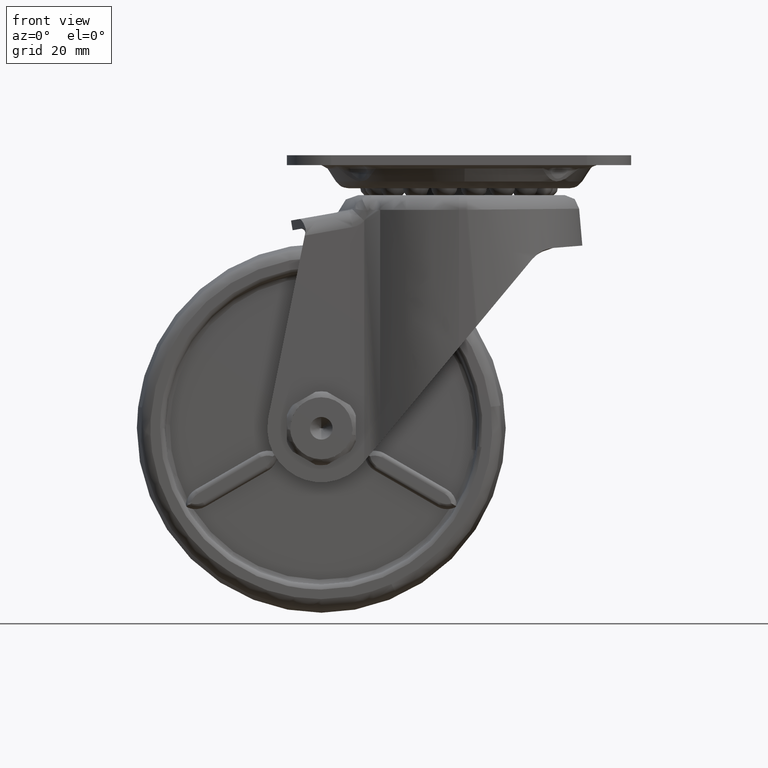
[diagram: clean part render]
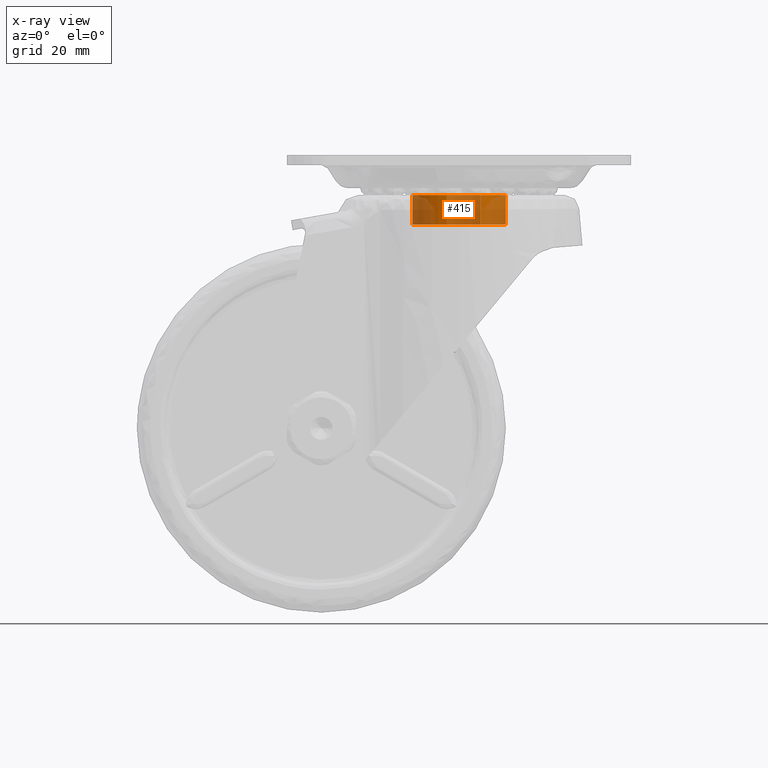
[diagram: x-ray — body ghosted, one internal face saturated and labeled with its STEP entity id]
A machine part, front view, then the same camera in x-ray: the body is ghosted and one INTERNAL B-rep face — a face not visible from any outside direction — is saturated and labeled: STEP entity #415.
In plain terms, the highlighted face is a freeform B-spline surface patch.
Its self-contained STEP definition (entity closure, byte-faithful):
#249=CARTESIAN_POINT('',(4.401541348275800,-8.418814272771337,-14.255999462602938));
#250=CARTESIAN_POINT('',(8.053277435599968,-6.509606294002475,-14.255999462602933));
#251=CARTESIAN_POINT('',(9.154489305481915,-2.538764572743439,-14.255999462602940));
#252=CARTESIAN_POINT('',(11.693253878225356,6.615724732738475,-14.255999462602929));
#253=CARTESIAN_POINT('',(2.538764572743439,9.154489305481915,-14.255999462602940));
#254=CARTESIAN_POINT('',(-6.615724732738475,11.693253878225356,-14.255999462602929));
#255=CARTESIAN_POINT('',(-9.154489305481915,2.538764572743439,-14.255999462602940));
#256=CARTESIAN_POINT('',(-11.693253878225356,-6.615724732738475,-14.255999462602929));
#257=CARTESIAN_POINT('',(-2.538764572743439,-9.154489305481915,-14.255999462602940));
#258=CARTESIAN_POINT('',(4.401541348275800,-8.418814272771337,-7.952251038434922));
#259=CARTESIAN_POINT('',(8.053277435599968,-6.509606294002475,-7.952251038434922));
#260=CARTESIAN_POINT('',(9.154489305481915,-2.538764572743439,-7.952251038434923));
#261=CARTESIAN_POINT('',(11.693253878225356,6.615724732738475,-7.952251038434923));
#262=CARTESIAN_POINT('',(2.538764572743439,9.154489305481915,-7.952251038434923));
#263=CARTESIAN_POINT('',(-6.615724732738475,11.693253878225356,-7.952251038434923));
#264=CARTESIAN_POINT('',(-9.154489305481915,2.538764572743439,-7.952251038434923));
#265=CARTESIAN_POINT('',(-11.693253878225356,-6.615724732738475,-7.952251038434923));
#266=CARTESIAN_POINT('',(-2.538764572743439,-9.154489305481915,-7.952251038434923));
#274=(BOUNDED_SURFACE()B_SPLINE_SURFACE(2,1,((#249,#258),(#250,#259),(#251,#260),(#252,#261),(#253,#262),(#254,#263),(#255,#264),(#256,#265),(#257,#266)),.UNSPECIFIED.,.F.,.F.,.U.)B_SPLINE_SURFACE_WITH_KNOTS((3,2,2,2,3),(2,2),(0.0,8.184859992492354,23.924975362669961,39.665090732847560,55.405206103025172),(0.0,6.303748424168013),.UNSPECIFIED.)GEOMETRIC_REPRESENTATION_ITEM()RATIONAL_B_SPLINE_SURFACE(((0.853787705168325,0.853787705168325),(0.847695526217005,0.847695526217005),(1.0,1.0),(0.707106781186548,0.707106781186548),(1.0,1.0),(0.707106781186548,0.707106781186548),(1.0,1.0),(0.707106781186548,0.707106781186548),(1.0,1.0)))REPRESENTATION_ITEM('')SURFACE());
#275=CARTESIAN_POINT('',(7.227042919140166,-6.166023892664216,-14.105999500096450));
#276=VERTEX_POINT('',#275);
#277=CARTESIAN_POINT('',(4.401541348279605,-8.418814272769328,-14.105999500031210));
#278=VERTEX_POINT('',#277);
#279=CARTESIAN_POINT('',(7.227042919140166,-6.166023892664216,-14.105999500096454));
#280=CARTESIAN_POINT('',(6.032507196696787,-7.566109439659019,-14.105999500055912));
#281=CARTESIAN_POINT('',(4.401541348279605,-8.418814272769327,-14.105999500031215));
#289=(BOUNDED_CURVE()B_SPLINE_CURVE(2,(#279,#280,#281),.UNSPECIFIED.,.F.,.U.)B_SPLINE_CURVE_WITH_KNOTS((3,3),(0.613065093416173,0.671174122833219),.UNSPECIFIED.)CURVE()GEOMETRIC_REPRESENTATION_ITEM()RATIONAL_B_SPLINE_CURVE((0.854888440015930,0.848388311537384,0.873536202615709))REPRESENTATION_ITEM(''));
#290=EDGE_CURVE('',#276,#278,#289,.T.);
#291=ORIENTED_EDGE('',*,*,#290,.T.);
#292=CARTESIAN_POINT('',(4.401532735066946,-8.418818775935232,-8.106000999999999));
#293=VERTEX_POINT('',#292);
#294=CARTESIAN_POINT('',(4.401541348279605,-8.418814272769328,-14.105999500031210));
#295=CARTESIAN_POINT('',(4.401532735066946,-8.418818775935232,-8.106000999999999));
#296=QUASI_UNIFORM_CURVE('',1,(#294,#295),.UNSPECIFIED.,.F.,.U.);
#297=EDGE_CURVE('',#278,#293,#296,.T.);
#298=ORIENTED_EDGE('',*,*,#297,.T.);
#299=CARTESIAN_POINT('',(9.500000000000000,0.0,-8.106000999999999));
#300=VERTEX_POINT('',#299);
#301=CARTESIAN_POINT('',(9.500000000000000,0.0,-8.106000999999999));
#302=CARTESIAN_POINT('',(9.499999999999998,-5.753234545832846,-8.106000999999999));
#303=CARTESIAN_POINT('',(4.401532735066946,-8.418818775935232,-8.106000999999999));
#311=(BOUNDED_CURVE()B_SPLINE_CURVE(2,(#301,#302,#303),.UNSPECIFIED.,.F.,.U.)B_SPLINE_CURVE_WITH_KNOTS((3,3),(0.0,0.171174280819783),.UNSPECIFIED.)CURVE()GEOMETRIC_REPRESENTATION_ITEM()RATIONAL_B_SPLINE_CURVE((1.0,0.799456855650464,0.873536339359886))REPRESENTATION_ITEM(''));
#312=EDGE_CURVE('',#300,#293,#311,.T.);
#313=ORIENTED_EDGE('',*,*,#312,.F.);
#314=CARTESIAN_POINT('',(-9.500000000000000,0.0,-8.106000999999999));
#315=VERTEX_POINT('',#314);
#316=CARTESIAN_POINT('',(-9.500000000000000,0.0,-8.106000999999999));
#317=CARTESIAN_POINT('',(-9.500000000000000,9.500000000000000,-8.106000999999999));
#318=CARTESIAN_POINT('',(0.0,9.500000000000000,-8.106000999999999));
#319=CARTESIAN_POINT('',(9.500000000000000,9.500000000000000,-8.106000999999999));
#320=CARTESIAN_POINT('',(9.500000000000000,0.0,-8.106000999999999));
#328=(BOUNDED_CURVE()B_SPLINE_CURVE(2,(#316,#317,#318,#319,#320),.UNSPECIFIED.,.F.,.U.)B_SPLINE_CURVE_WITH_KNOTS((3,2,3),(0.500000000000000,0.750000000000000,1.0),.UNSPECIFIED.)CURVE()GEOMETRIC_REPRESENTATION_ITEM()RATIONAL_B_SPLINE_CURVE((1.0,0.707106781186548,1.0,0.707106781186548,1.0))REPRESENTATION_ITEM(''));
#329=EDGE_CURVE('',#315,#300,#328,.T.);
#330=ORIENTED_EDGE('',*,*,#329,.F.);
#331=CARTESIAN_POINT('',(-2.538759619908632,-9.154490679021684,-8.106000999999999));
#332=VERTEX_POINT('',#331);
#333=CARTESIAN_POINT('',(-2.538759619908632,-9.154490679021684,-8.106000999999999));
#334=CARTESIAN_POINT('',(-9.500000000000000,-7.223971920404214,-8.106000999999999));
#335=CARTESIAN_POINT('',(-9.500000000000000,0.0,-8.106000999999999));
#343=(BOUNDED_CURVE()B_SPLINE_CURVE(2,(#333,#334,#335),.UNSPECIFIED.,.F.,.U.)B_SPLINE_CURVE_WITH_KNOTS((3,3),(0.295548739340634,0.500000000000000),.UNSPECIFIED.)CURVE()GEOMETRIC_REPRESENTATION_ITEM()RATIONAL_B_SPLINE_CURVE((0.912717847227673,0.760470448700041,1.0))REPRESENTATION_ITEM(''));
#344=EDGE_CURVE('',#332,#315,#343,.T.);
#345=ORIENTED_EDGE('',*,*,#344,.F.);
#346=CARTESIAN_POINT('',(-2.538764572816133,-9.154489305461757,-14.105999499999900));
#347=VERTEX_POINT('',#346);
#348=CARTESIAN_POINT('',(-2.538764572816133,-9.154489305461757,-14.105999499999900));
#349=CARTESIAN_POINT('',(-2.538759619908632,-9.154490679021684,-8.106000999999999));
#350=QUASI_UNIFORM_CURVE('',1,(#348,#349),.UNSPECIFIED.,.F.,.U.);
#351=EDGE_CURVE('',#347,#332,#350,.T.);
#352=ORIENTED_EDGE('',*,*,#351,.F.);
#353=CARTESIAN_POINT('',(-9.500000000000000,0.0,-14.105999499999900));
#354=VERTEX_POINT('',#353);
#355=CARTESIAN_POINT('',(-2.538764572816133,-9.154489305461757,-14.105999499999895));
#356=CARTESIAN_POINT('',(-9.499999999999998,-7.223967864405740,-14.105999499999896));
#357=CARTESIAN_POINT('',(-9.500000000000000,0.0,-14.105999499999900));
#365=(BOUNDED_CURVE()B_SPLINE_CURVE(2,(#355,#356,#357),.UNSPECIFIED.,.F.,.U.)B_SPLINE_CURVE_WITH_KNOTS((3,3),(0.795548826636550,1.0),.UNSPECIFIED.)CURVE()GEOMETRIC_REPRESENTATION_ITEM()RATIONAL_B_SPLINE_CURVE((0.912717717215573,0.760470550973568,1.0))REPRESENTATION_ITEM(''));
#366=EDGE_CURVE('',#347,#354,#365,.T.);
#367=ORIENTED_EDGE('',*,*,#366,.T.);
#368=CARTESIAN_POINT('',(5.290318356638272,7.890661042359891,-14.105999500100420));
#369=VERTEX_POINT('',#368);
#370=CARTESIAN_POINT('',(-9.500000000000000,0.0,-14.105999499999900));
#371=CARTESIAN_POINT('',(-9.500000000000000,9.500000000000000,-14.105999499999900));
#372=CARTESIAN_POINT('',(0.0,9.500000000000000,-14.105999499999900));
#373=CARTESIAN_POINT('',(2.889943301502541,9.500000000000000,-14.105999499999900));
#374=CARTESIAN_POINT('',(5.290318356638272,7.890661042359892,-14.105999500100422));
#382=(BOUNDED_CURVE()B_SPLINE_CURVE(2,(#370,#371,#372,#373,#374),.UNSPECIFIED.,.F.,.U.)B_SPLINE_CURVE_WITH_KNOTS((3,2,3),(0.0,0.250000000000000,0.345516885356580),.UNSPECIFIED.)CURVE()GEOMETRIC_REPRESENTATION_ITEM()RATIONAL_B_SPLINE_CURVE((1.0,0.707106781186548,1.0,0.888095007987503,0.861700546318099))REPRESENTATION_ITEM(''));
#383=EDGE_CURVE('',#354,#369,#382,.T.);
#384=ORIENTED_EDGE('',*,*,#383,.T.);
#385=CARTESIAN_POINT('',(9.500000000000000,0.0,-14.105999499999900));
#386=VERTEX_POINT('',#385);
#387=CARTESIAN_POINT('',(5.290318356638272,7.890661042359892,-14.105999500100422));
#388=CARTESIAN_POINT('',(9.500000000000000,5.068266827993521,-14.105999499999902));
#389=CARTESIAN_POINT('',(9.500000000000000,0.0,-14.105999499999900));
#397=(BOUNDED_CURVE()B_SPLINE_CURVE(2,(#387,#388,#389),.UNSPECIFIED.,.F.,.U.)B_SPLINE_CURVE_WITH_KNOTS((3,3),(0.345516885356580,0.500000000000000),.UNSPECIFIED.)CURVE()GEOMETRIC_REPRESENTATION_ITEM()RATIONAL_B_SPLINE_CURVE((0.861700546318099,0.819011773199045,1.0))REPRESENTATION_ITEM(''));
#398=EDGE_CURVE('',#369,#386,#397,.T.);
#399=ORIENTED_EDGE('',*,*,#398,.T.);
#400=CARTESIAN_POINT('',(9.500000000000000,0.0,-14.105999499999900));
#401=CARTESIAN_POINT('',(9.500000000000000,-3.501947550650790,-14.105999499999900));
#402=CARTESIAN_POINT('',(7.227042919140166,-6.166023892664216,-14.105999500096457));
#410=(BOUNDED_CURVE()B_SPLINE_CURVE(2,(#400,#401,#402),.UNSPECIFIED.,.F.,.U.)B_SPLINE_CURVE_WITH_KNOTS((3,3),(0.500000000000000,0.613065093416174),.UNSPECIFIED.)CURVE()GEOMETRIC_REPRESENTATION_ITEM()RATIONAL_B_SPLINE_CURVE((1.0,0.867536003415573,0.854888440015929))REPRESENTATION_ITEM(''));
#411=EDGE_CURVE('',#386,#276,#410,.T.);
#412=ORIENTED_EDGE('',*,*,#411,.T.);
#413=EDGE_LOOP('',(#291,#298,#313,#330,#345,#352,#367,#384,#399,#412));
#414=FACE_OUTER_BOUND('',#413,.T.);
#415=ADVANCED_FACE('',(#414),#274,.F.);